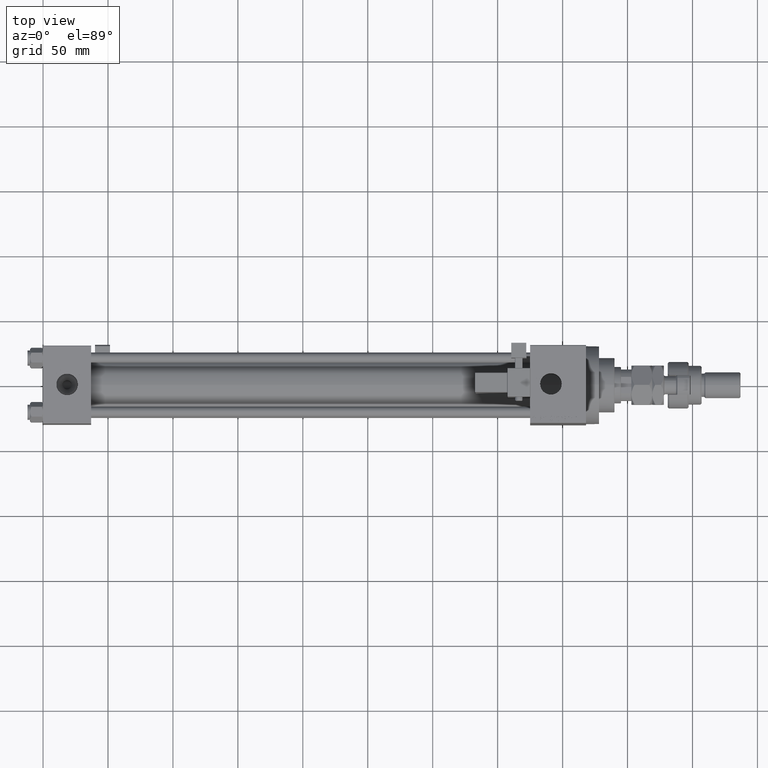
[diagram: clean part render]
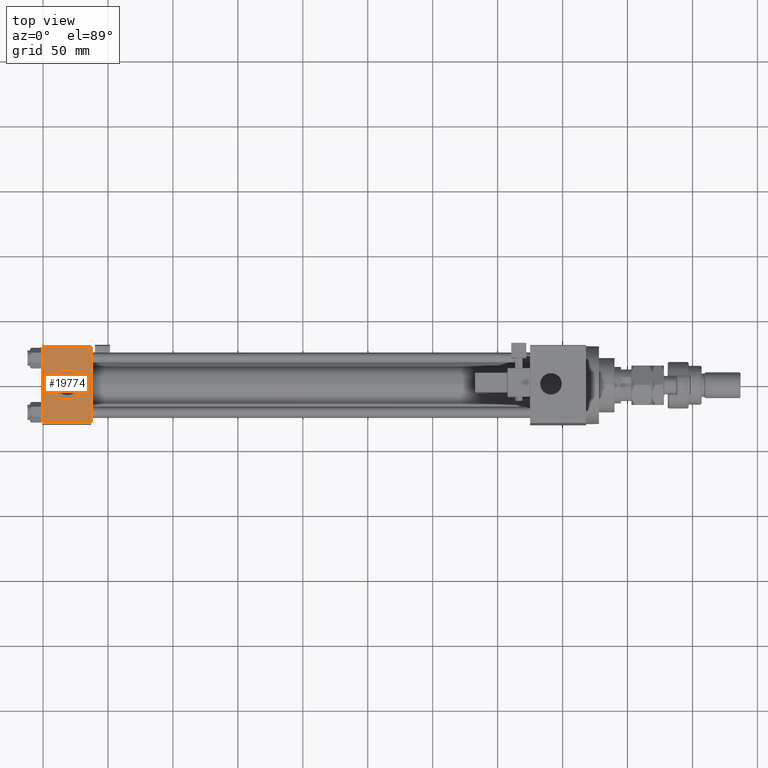
[diagram: same view with one face highlighted and labeled with its STEP entity id]
A machine part, top view. The second image highlights one B-rep face of the part: STEP entity #19774.
In plain terms, the highlighted planar face has unit normal (0, 0, -1).
Its self-contained STEP definition (entity closure, byte-faithful):
#13 = LINE ( 'NONE', #37448, #13661 ) ;
#396 = CARTESIAN_POINT ( 'NONE',  ( 18.50000000000000000, -3.469446951953614978E-15, 29.99999999999999645 ) ) ;
#728 = EDGE_CURVE ( 'NONE', #48468, #12823, #49571, .T. ) ;
#1445 = CARTESIAN_POINT ( 'NONE',  ( 37.00000000000000000, -29.50000000000000000, 29.99999999999999289 ) ) ;
#2282 = CARTESIAN_POINT ( 'NONE',  ( 0.000000000000000000, 29.99999999999999289, 30.00000000000000000 ) ) ;
#2864 = EDGE_CURVE ( 'NONE', #36058, #48468, #22490, .T. ) ;
#3128 = DIRECTION ( 'NONE',  ( 0.000000000000000000, 0.000000000000000000, 1.000000000000000000 ) ) ;
#3149 = CIRCLE ( 'NONE', #4802, 12.00000000000000000 ) ;
#3699 = VERTEX_POINT ( 'NONE', #35499 ) ;
#3989 = DIRECTION ( 'NONE',  ( 0.000000000000000000, 0.000000000000000000, 1.000000000000000000 ) ) ;
#4802 = AXIS2_PLACEMENT_3D ( 'NONE', #396, #3128, #48774 ) ;
#5291 = CARTESIAN_POINT ( 'NONE',  ( 37.00000000000000000, -29.49999999999998579, 29.99999999999999289 ) ) ;
#6953 = EDGE_CURVE ( 'NONE', #10711, #9076, #41741, .T. ) ;
#8676 = ORIENTED_EDGE ( 'NONE', *, *, #728, .T. ) ;
#8796 = CARTESIAN_POINT ( 'NONE',  ( 6.499999999999997335, -1.999870792976790833E-15, 29.99999999999999645 ) ) ;
#9061 = EDGE_LOOP ( 'NONE', ( #10121, #31905 ) ) ;
#9076 = VERTEX_POINT ( 'NONE', #8796 ) ;
#10121 = ORIENTED_EDGE ( 'NONE', *, *, #6953, .F. ) ;
#10711 = VERTEX_POINT ( 'NONE', #21753 ) ;
#10802 = VECTOR ( 'NONE', #35084, 1000.000000000000000 ) ;
#11890 = VECTOR ( 'NONE', #34177, 1000.000000000000000 ) ;
#12823 = VERTEX_POINT ( 'NONE', #5291 ) ;
#13661 = VECTOR ( 'NONE', #20210, 1000.000000000000000 ) ;
#17139 = DIRECTION ( 'NONE',  ( 1.000000000000000000, 0.000000000000000000, 0.000000000000000000 ) ) ;
#19774 = ADVANCED_FACE ( 'NONE', ( #28887, #24118 ), #44314, .F. ) ;
#20210 = DIRECTION ( 'NONE',  ( -1.000000000000000000, 0.000000000000000000, 0.000000000000000000 ) ) ;
#20398 = DIRECTION ( 'NONE',  ( 0.000000000000000000, 1.000000000000000000, 1.156482317317871725E-16 ) ) ;
#20467 = CARTESIAN_POINT ( 'NONE',  ( 18.50000000000000000, -3.469446951953614978E-15, 29.99999999999999645 ) ) ;
#20568 = AXIS2_PLACEMENT_3D ( 'NONE', #20467, #3989, #24967 ) ;
#21753 = CARTESIAN_POINT ( 'NONE',  ( 30.50000000000000000, -3.469446951953614978E-15, 29.99999999999999645 ) ) ;
#22490 = LINE ( 'NONE', #2282, #11890 ) ;
#23561 = EDGE_CURVE ( 'NONE', #3699, #12823, #39071, .T. ) ;
#24118 = FACE_OUTER_BOUND ( 'NONE', #31733, .T. ) ;
#24967 = DIRECTION ( 'NONE',  ( 1.000000000000000000, 0.000000000000000000, 0.000000000000000000 ) ) ;
#25569 = EDGE_CURVE ( 'NONE', #9076, #10711, #3149, .T. ) ;
#26847 = ORIENTED_EDGE ( 'NONE', *, *, #2864, .T. ) ;
#28315 = CARTESIAN_POINT ( 'NONE',  ( 0.000000000000000000, 29.49999999999999289, 30.00000000000000000 ) ) ;
#28632 = DIRECTION ( 'NONE',  ( 0.000000000000000000, 1.156482317317871725E-16, -1.000000000000000000 ) ) ;
#28887 = FACE_BOUND ( 'NONE', #9061, .T. ) ;
#31733 = EDGE_LOOP ( 'NONE', ( #26847, #8676, #39072, #52166 ) ) ;
#31905 = ORIENTED_EDGE ( 'NONE', *, *, #25569, .F. ) ;
#34177 = DIRECTION ( 'NONE',  ( 0.000000000000000000, -1.000000000000000000, -1.156482317317871725E-16 ) ) ;
#34828 = CARTESIAN_POINT ( 'NONE',  ( 37.00000000000000000, 29.99999999999999289, 30.00000000000000000 ) ) ;
#35084 = DIRECTION ( 'NONE',  ( 0.000000000000000000, -1.000000000000000000, -1.156482317317871725E-16 ) ) ;
#35482 = EDGE_CURVE ( 'NONE', #3699, #36058, #13, .T. ) ;
#35499 = CARTESIAN_POINT ( 'NONE',  ( 37.00000000000000000, 29.49999999999999289, 30.00000000000000000 ) ) ;
#36058 = VERTEX_POINT ( 'NONE', #28315 ) ;
#36565 = VECTOR ( 'NONE', #17139, 1000.000000000000000 ) ;
#37448 = CARTESIAN_POINT ( 'NONE',  ( 0.000000000000000000, 29.49999999999999289, 30.00000000000000000 ) ) ;
#37909 = AXIS2_PLACEMENT_3D ( 'NONE', #49101, #28632, #20398 ) ;
#37929 = CARTESIAN_POINT ( 'NONE',  ( 0.000000000000000000, -29.49999999999998579, 29.99999999999999289 ) ) ;
#39071 = LINE ( 'NONE', #34828, #10802 ) ;
#39072 = ORIENTED_EDGE ( 'NONE', *, *, #23561, .F. ) ;
#41741 = CIRCLE ( 'NONE', #20568, 12.00000000000000000 ) ;
#44314 = PLANE ( 'NONE',  #37909 ) ;
#48468 = VERTEX_POINT ( 'NONE', #37929 ) ;
#48774 = DIRECTION ( 'NONE',  ( 1.000000000000000000, 0.000000000000000000, 0.000000000000000000 ) ) ;
#49101 = CARTESIAN_POINT ( 'NONE',  ( 37.00000000000000000, 29.99999999999999289, 30.00000000000000000 ) ) ;
#49571 = LINE ( 'NONE', #1445, #36565 ) ;
#52166 = ORIENTED_EDGE ( 'NONE', *, *, #35482, .T. ) ;